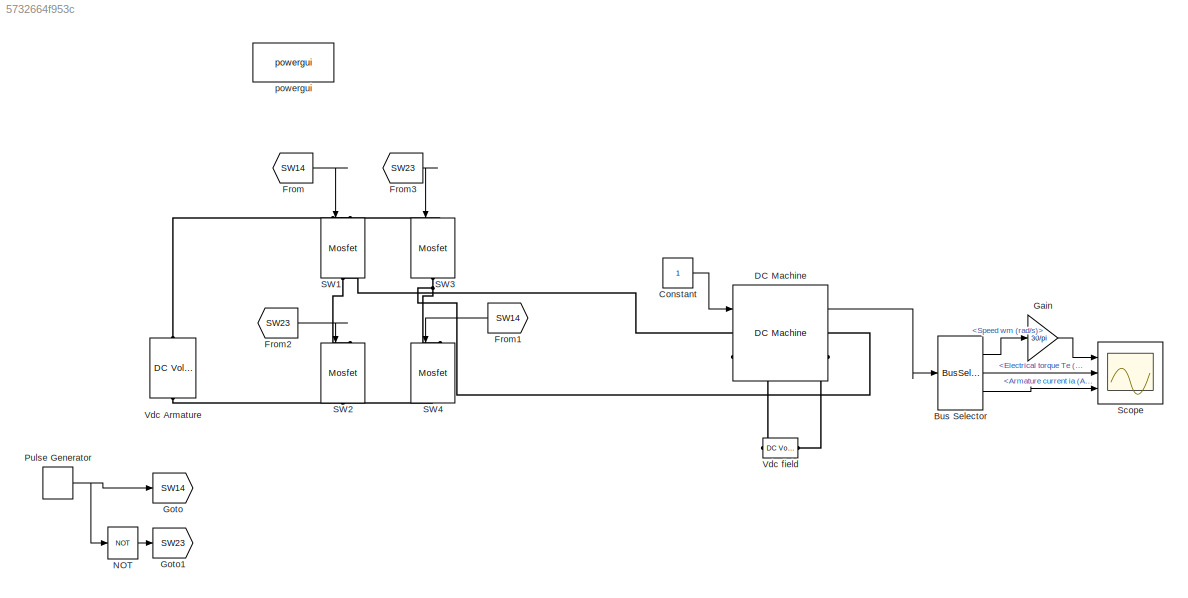
MODEL slx_5732664f953c
KIND model
CONFIG AbsTol = auto
CONFIG EnableMultiTasking = off
CONFIG FixedStep = auto
CONFIG MaxStep = auto
CONFIG MinStep = auto
CONFIG RelTol = 1e-3
CONFIG SampleTimeConstraint = Unconstrained
CONFIG Solver = VariableStepAuto
CONFIG SolverName = VariableStepAuto
CONFIG StartTime = 0.0
CONFIG StopTime = 10.0
BLOCK [BusSelector] Bus Selector
  OutputAsBus = off
  OutputSignals = Speed wm (rad/s),Electrical torque Te (n m),Armature current ia (A)
  Ports = [1, 3]
BLOCK [Constant] Constant
BLOCK [Reference] DC Machine  REF=powerlib/Machines/DC Machine
  Ports = [1, 1, 0, 0, 0, 2, 2]
  SourceBlock = powerlib/Machines/DC Machine
  SourceProductBaseCode = PS
  SourceProductName = Simscape Power Systems
  SourceType = DC machine
BLOCK [From] From
  GotoTag = SW14
BLOCK [From] From1
  GotoTag = SW14
BLOCK [From] From2
  GotoTag = SW23
BLOCK [From] From3
  GotoTag = SW23
BLOCK [Gain] Gain
  Gain = 30/pi
  OutDataTypeStr = Inherit: Inherit via internal rule
  ParamDataTypeStr = Inherit: Inherit via internal rule
  SaturateOnIntegerOverflow = off
BLOCK [Goto] Goto
  GotoTag = SW14
BLOCK [Goto] Goto1
  GotoTag = SW23
BLOCK [Logic] NOT
  AllPortsSameDT = off
  IconShape = distinctive
  Operator = NOT
  OutDataTypeStr = boolean
  Ports = [1, 1]
BLOCK [DiscretePulseGenerator] Pulse Generator
  Period = 1/1000
  Ports = [0, 1]
  PulseType = Time based
  PulseWidth = 80
BLOCK [Reference] SW1  REF=powerlib/Power
Electronics/Mosfet
  Ports = [1, 0, 0, 0, 0, 1, 1]
  SourceBlock = powerlib/Power\nElectronics/Mosfet
  SourceProductBaseCode = PS
  SourceProductName = Simscape Power Systems
  SourceType = Mosfet
BLOCK [Reference] SW2  REF=powerlib/Power
Electronics/Mosfet
  Ports = [1, 0, 0, 0, 0, 1, 1]
  SourceBlock = powerlib/Power\nElectronics/Mosfet
  SourceProductBaseCode = PS
  SourceProductName = Simscape Power Systems
  SourceType = Mosfet
BLOCK [Reference] SW3  REF=powerlib/Power
Electronics/Mosfet
  Ports = [1, 0, 0, 0, 0, 1, 1]
  SourceBlock = powerlib/Power\nElectronics/Mosfet
  SourceProductBaseCode = PS
  SourceProductName = Simscape Power Systems
  SourceType = Mosfet
BLOCK [Reference] SW4  REF=powerlib/Power
Electronics/Mosfet
  Ports = [1, 0, 0, 0, 0, 1, 1]
  SourceBlock = powerlib/Power\nElectronics/Mosfet
  SourceProductBaseCode = PS
  SourceProductName = Simscape Power Systems
  SourceType = Mosfet
BLOCK [Scope] Scope
  Floating = off
  NumInputPorts = 3
  Ports = [3]
  ScopeSpecificationString = Simulink.scopes.TimeScopeBlockCfg('CurrentConfiguration', extmgr.ConfigurationSet(extmgr.Configuration('Core','General UI',true),extmgr.Configuration('Core','Source UI',true),extmgr.Configuration('Sources','WiredSimulink',true),extmgr.Configuration('Visuals','Time Domain',true,'SerializedDisplays',{struct('MinYLimReal','-153.18985','MaxYLimReal','1473.32644','YLabelReal','','MinYLimMag',' 0.00000'...<+2657ch>
BLOCK [Reference] Vdc Armature  REF=powerlib/Electrical
Sources/DC Voltage Source
  Ports = [0, 0, 0, 0, 0, 1, 1]
  SourceBlock = powerlib/Electrical\nSources/DC Voltage Source
  SourceProductBaseCode = PS
  SourceProductName = Simscape Power Systems
  SourceType = DC Voltage Source
BLOCK [Reference] Vdc field   REF=powerlib/Electrical
Sources/DC Voltage Source
  Ports = [0, 0, 0, 0, 0, 1, 1]
  SourceBlock = powerlib/Electrical\nSources/DC Voltage Source
  SourceProductBaseCode = PS
  SourceProductName = Simscape Power Systems
  SourceType = DC Voltage Source
BLOCK [Reference] powergui  REF=powerlib/powergui
  Ports = []
  Priority = 1
  SourceBlock = powerlib/powergui
  SourceProductBaseCode = PS
  SourceProductName = Simscape Power Systems
  SourceType = PSB option menu block
LINE Bus Selector:1 -> Gain:1
LINE Bus Selector:2 -> Scope:2
LINE Bus Selector:3 -> Scope:3
LINE Constant:1 -> DC Machine:1
LINE DC Machine:1 -> Bus Selector:1
LINE From1:1 -> SW4:1
LINE From2:1 -> SW2:1
LINE From3:1 -> SW3:1
LINE From:1 -> SW1:1
LINE Gain:1 -> Scope:1
LINE NOT:1 -> Goto1:1
NET Pulse Generator:1 -> Goto:1, NOT:1
PNET net1: DC Machine:LConn1 -- SW1:RConn1 -- SW2:LConn1
PLINE DC Machine:LConn2 -- Vdc field :RConn1
PNET net2: DC Machine:RConn1 -- SW3:RConn1 -- SW4:LConn1
PLINE DC Machine:RConn2 -- Vdc field :LConn1
PNET net3: SW1:LConn1 -- SW3:LConn1 -- Vdc Armature:RConn1
PNET net4: SW2:RConn1 -- SW4:RConn1 -- Vdc Armature:LConn1
note: NET lines group one-source signal fan-out (src -> all destinations, sorted); 1:1 wires keep LINE; PNET lines group multi-terminal physical nets as a canonical sorted terminal list (undirected conserving connections); 2-terminal nets keep the pairwise PLINE form
